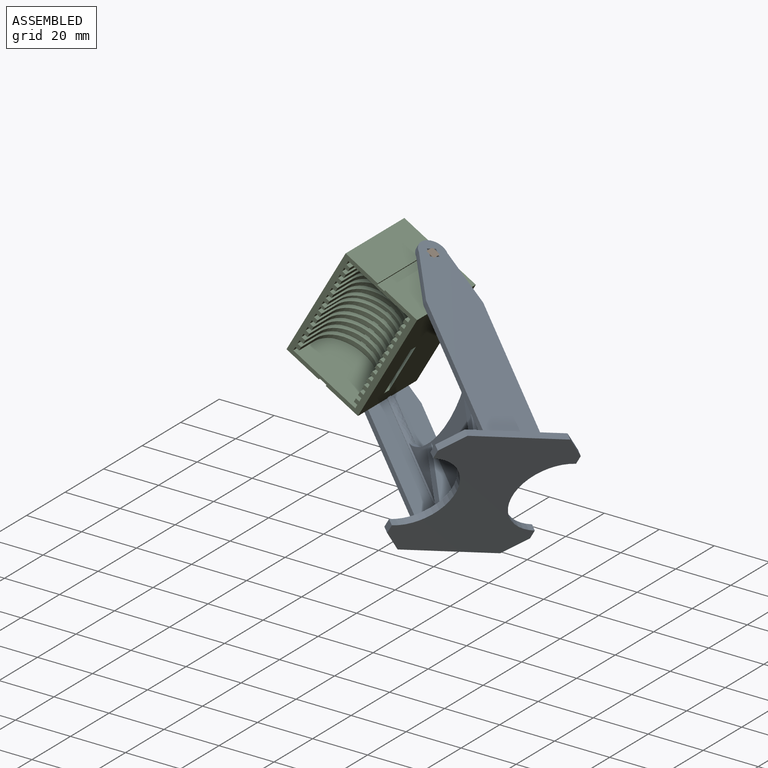
[diagram: assembled view]
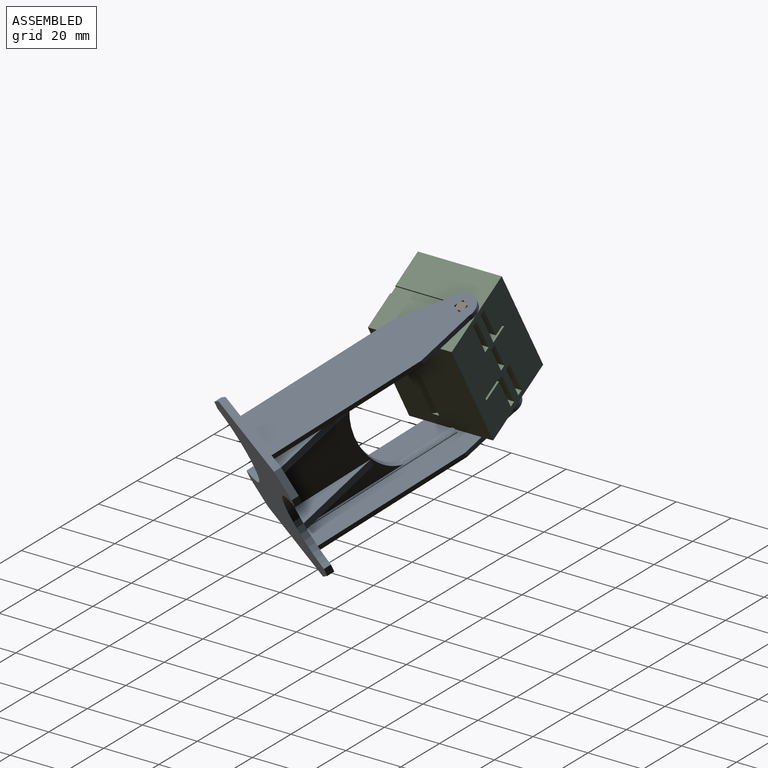
[diagram: assembled view, second angle]
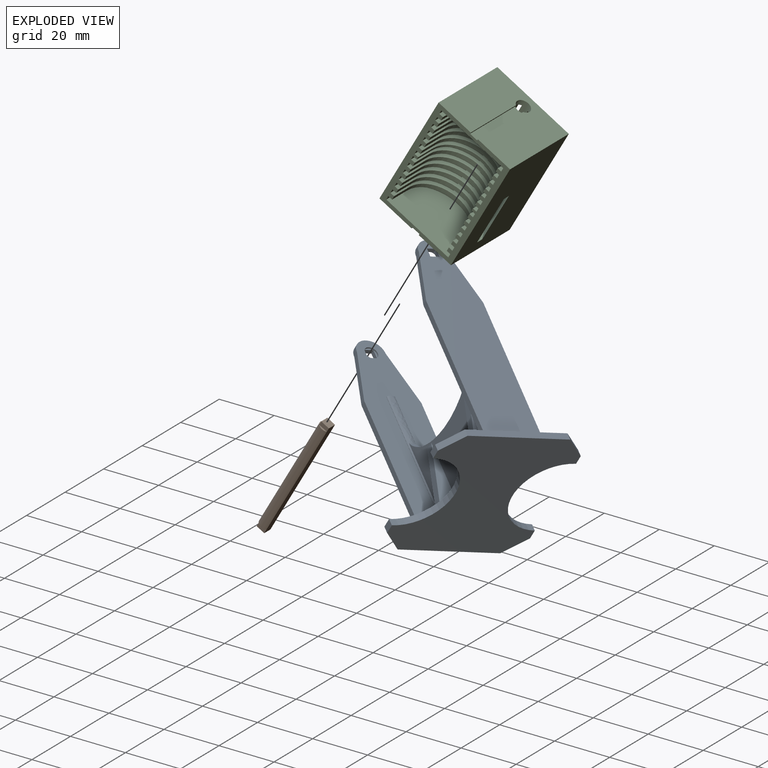
[diagram: exploded view]
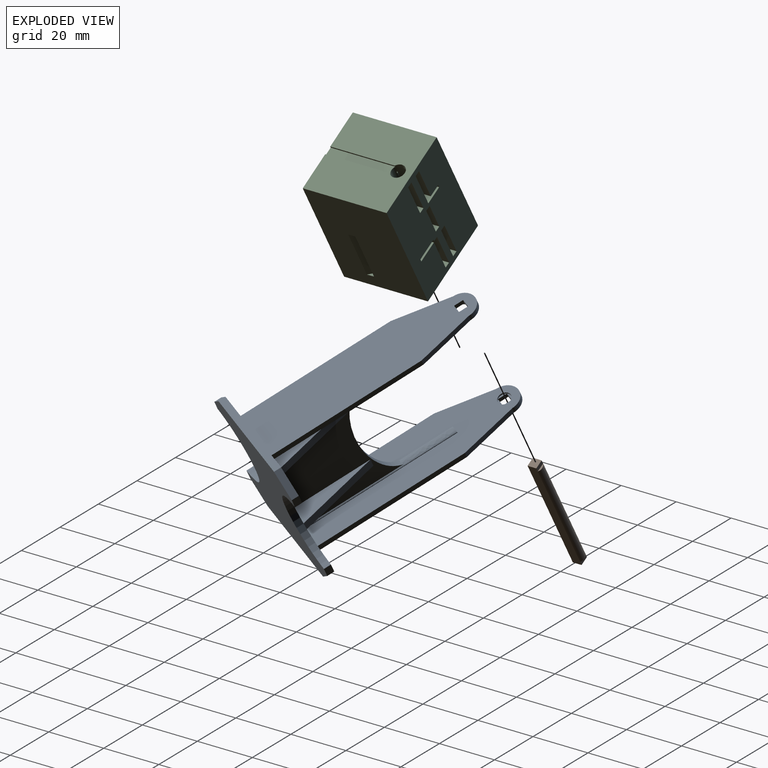
[diagram: exploded view, second angle]
ASSEMBLY  parts=3 mates=3
PART A: 65 faces, bbox 51x50x80.5 mm
  f0: plane 51x50mm, normal (0,0,1), area 1486.6mm2, adj f1,f2,f4,f5,f6,f7,f8,f9
  f1: plane 42.24x36.75mm, normal (0,1,0), area 1068.1mm2, adj f0,f3,f7,f8,f9,f10,f57,f58
  f2: plane 42.24x36.75mm, normal (0,-1,0), area 1068.1mm2, adj f0,f3,f6,f54,f55,f56,f59,f60
  f3: extruded ~42.24x9.89mm, area 97.4mm2, adj f1,f2,f62,f63
  f4: plane 78x20mm, normal (1,0,0), area 1219.4mm2, adj f0,f34,f35,f38,f40,f52,f53,f63
  f5: plane 78x20mm, normal (-1,0,0), area 1219.3mm2, adj f0,f36,f37,f39,f45,f50,f51,f61
  f6: plane 28.4x7.5mm, normal (-1,0,0), area 106.5mm2, adj f0,f2,f60
  f7: plane 28.4x7.5mm, normal (-1,0,0), area 106.5mm2, adj f0,f1,f58
  f8: plane 28.4x7.5mm, normal (1,0,0), area 106.5mm2, adj f0,f1,f58
  f9: plane 28.4x7.5mm, normal (1,0,0), area 106.5mm2, adj f0,f1,f57
  f10: plane 28.4x7.5mm, normal (-1,0,0), area 106.5mm2, adj f0,f1,f57
  f11: plane 78x20mm, normal (-1,0,0), area 1391.6mm2, adj f0,f17,f18,f19,f20,f34,f35,f38
  f12: plane 78x20mm, normal (1,0,0), area 1391.6mm2, adj f0,f13,f14,f15,f16,f36,f37,f39
  f13: plane 3.18x1.5mm, normal (0,0,1), area 4.8mm2, adj f12,f14,f16,f48
  f14: plane 3.18x1.5mm, normal (0,1,0), area 4.8mm2, adj f12,f13,f15,f46
  f15: plane 3.18x1.5mm, normal (0,0,-1), area 4.8mm2, adj f12,f14,f16,f47
  f16: plane 3.18x1.5mm, normal (0,-1,0), area 4.8mm2, adj f12,f13,f15,f49
  f17: plane 3.18x1.5mm, normal (0,-1,0), area 4.8mm2, adj f11,f18,f20,f43
  f18: plane 3.18x1.5mm, normal (0,0,-1), area 4.8mm2, adj f11,f17,f19,f41
  f19: plane 3.18x1.5mm, normal (0,1,0), area 4.8mm2, adj f11,f18,f20,f42
  f20: plane 3.18x1.5mm, normal (0,0,1), area 4.8mm2, adj f11,f17,f19,f44
  f21: plane 3.43x2.5mm, normal (0,1,0), area 8.6mm2, adj f0,f27,f28,f33
  f22: plane 3.43x2.5mm, normal (0,-1,0), area 8.6mm2, adj f0,f27,f31,f32
  f23: plane 3.43x2.5mm, normal (0,1,0), area 8.6mm2, adj f0,f27,f29,f33
  f24: plane 35.86x2.5mm, normal (-1,0,0), area 89.6mm2, adj f0,f27,f28,f31
  f25: plane 3.43x2.5mm, normal (0,-1,0), area 8.6mm2, adj f0,f27,f30,f32
  f26: plane 35.86x2.5mm, normal (1,0,0), area 89.6mm2, adj f0,f27,f29,f30
  f27: plane 51x50mm, normal (0,0,-1), area 1743.1mm2, adj f21,f22,f23,f24,f25,f26,f28,f29
  f28: plane 7.07x7.07mm, normal (-0.71,0.71,0), area 25mm2, adj f0,f21,f24,f27
  f29: plane 7.07x7.07mm, normal (0.71,0.71,0), area 25mm2, adj f0,f23,f26,f27
  f30: plane 7.07x7.07mm, normal (0.71,-0.71,0), area 25mm2, adj f0,f25,f26,f27
  f31: plane 7.07x7.07mm, normal (-0.71,-0.71,0), area 25mm2, adj f0,f22,f24,f27
  f32: cylinder r=15mm len=30mm, axis (0,0,1), area 117.8mm2, adj f0,f22,f25,f27
  f33: cylinder r=15mm len=30mm, axis (0,0,1), area 117.8mm2, adj f0,f21,f23,f27
  f34: plane 53.48x2mm, normal (0,1,0), area 107mm2, adj f0,f4,f11,f52
  f35: plane 53.48x2mm, normal (0,-1,0), area 107mm2, adj f0,f4,f11,f53
  f36: plane 53.48x2mm, normal (0,1,0), area 107mm2, adj f0,f5,f12,f50
  f37: plane 53.48x2mm, normal (0,-1,0), area 107mm2, adj f0,f5,f12,f51
  f38: cylinder r=5mm len=10mm, axis (-1,0,0), area 31.4mm2, adj f4,f11,f52,f53
  f39: cylinder r=5mm len=10mm, axis (1,0,0), area 31.4mm2, adj f5,f12,f50,f51
  f40: cylinder r=2.25mm len=4.5mm, axis (1,0,0), area 7.1mm2, adj f4,f41,f42,f43,f44
  f41: plane 3.18x0.66mm, normal (1,0,0), area 1.4mm2, adj f18,f40
  f42: plane 3.18x0.66mm, normal (1,0,0), area 1.4mm2, adj f19,f40
  f43: plane 3.18x0.66mm, normal (1,0,0), area 1.4mm2, adj f17,f40
  f44: plane 3.18x0.66mm, normal (1,0,0), area 1.4mm2, adj f20,f40
  f45: cylinder r=2.25mm len=4.5mm, axis (-1,0,0), area 7.1mm2, adj f5,f46,f47,f48,f49
  f46: plane 3.18x0.66mm, normal (-1,0,0), area 1.4mm2, adj f14,f45
  f47: plane 3.18x0.66mm, normal (-1,0,0), area 1.4mm2, adj f15,f45
  f48: plane 3.18x0.66mm, normal (-1,0,0), area 1.4mm2, adj f13,f45
  f49: plane 3.18x0.66mm, normal (-1,0,0), area 1.4mm2, adj f16,f45
  f50: plane 19.52x5mm, normal (0,0.97,0.25), area 40.3mm2, adj f5,f12,f36,f39
  f51: plane 19.52x5mm, normal (0,-0.97,0.25), area 40.3mm2, adj f5,f12,f37,f39
  f52: plane 19.52x5mm, normal (0,0.97,0.25), area 40.3mm2, adj f4,f11,f34,f38
  f53: plane 19.52x5mm, normal (0,-0.97,0.25), area 40.3mm2, adj f4,f11,f35,f38
  f54: plane 28.4x7.5mm, normal (1,0,0), area 106.5mm2, adj f0,f2,f60
  f55: plane 28.4x7.5mm, normal (1,0,0), area 106.5mm2, adj f0,f2,f59
  f56: plane 28.4x7.5mm, normal (-1,0,0), area 106.5mm2, adj f0,f2,f59
  f57: plane 28.4x7.5mm, normal (0,0.97,0.26), area 88.1mm2, adj f0,f1,f9,f10
  f58: plane 28.4x7.5mm, normal (0,0.97,0.26), area 88.1mm2, adj f0,f1,f7,f8
  f59: plane 28.4x7.5mm, normal (0,-0.97,0.26), area 88.1mm2, adj f0,f2,f55,f56
  f60: plane 28.4x7.5mm, normal (0,-0.97,0.26), area 88.1mm2, adj f0,f2,f6,f54
  f61: plane 3x0.5mm, normal (0,0,1), area 1.2mm2, adj f5,f62
  f62: extruded ~55.5x3mm, area 111.6mm2, adj f0,f1,f2,f3,f5,f61
  f63: extruded ~55.5x3mm, area 113.7mm2, adj f0,f1,f2,f3,f4,f64
  f64: plane 3x0.52mm, normal (0,0,1), area 1.2mm2, adj f4,f63
PART B: 16 faces, bbox 47x4.5x3.8 mm
  f0: cylinder r=2.25mm len=44mm, axis (1,0,0), area 466.5mm2, adj f1,f2,f3,f4,f5,f6,f9
  f1: plane 3.18x0.66mm, normal (-1,0,0), area 1.4mm2, adj f0,f12
  f2: plane 3.18x0.66mm, normal (-1,0,0), area 1.4mm2, adj f0,f13
  f3: plane 3.18x0.66mm, normal (-1,0,0), area 1.4mm2, adj f0,f14
  f4: plane 3.18x0.66mm, normal (1,0,0), area 1.4mm2, adj f0,f7
  f5: plane 3.18x0.66mm, normal (1,0,0), area 1.4mm2, adj f0,f10
  f6: plane 3.18x0.66mm, normal (1,0,0), area 1.4mm2, adj f0,f8
  f7: plane 3.18x1.5mm, normal (0,0,1), area 4.8mm2, adj f4,f8,f10,f11
  f8: plane 3.18x1.5mm, normal (0,-1,0), area 4.8mm2, adj f6,f7,f9,f11
  f9: plane 47x3.18mm, normal (0,0,-1), area 149.6mm2, adj f0,f8,f10,f11,f13,f14,f15
  f10: plane 3.18x1.5mm, normal (0,1,0), area 4.8mm2, adj f5,f7,f9,f11
  f11: plane 3.18x3.18mm, normal (1,0,0), area 10.1mm2, adj f7,f8,f9,f10
  f12: plane 3.18x1.5mm, normal (0,0,1), area 4.8mm2, adj f1,f13,f14,f15
  f13: plane 3.18x1.5mm, normal (0,-1,0), area 4.8mm2, adj f2,f9,f12,f15
  f14: plane 3.18x1.5mm, normal (0,1,0), area 4.8mm2, adj f3,f9,f12,f15
  f15: plane 3.18x3.18mm, normal (-1,0,0), area 10.1mm2, adj f9,f12,f13,f14
PART C: 205 faces, bbox 30x43x30.5 mm
  f0: plane 43x30mm, normal (0,0,-1), area 1156.2mm2, adj f3,f4,f7,f8,f9,f10,f11,f12
  f1: cylinder r=3.93mm len=9.25mm, axis (0,1,0), area 16.2mm2, adj f191,f193,f195,f203
  f2: cylinder r=3.25mm len=9.25mm, axis (0,-1,0), area 14.9mm2, adj f186,f188,f190,f200
  f3: plane 43x30.5mm, normal (1,0,0), area 1268.3mm2, adj f0,f4,f5,f110,f185,f188,f189,f190
  f4: plane 30.5x30mm, normal (0,1,0), area 825.9mm2, adj f0,f3,f5,f6,f111,f182,f184
  f5: plane 43x30mm, normal (0,0,1), area 304mm2, adj f3,f4,f15,f16,f17,f18,f19,f20
  f6: cylinder r=2.5mm len=43mm, axis (0,1,0), area 369mm2, adj f4,f7,f8,f9,f10,f11,f12,f13
  f7: plane 2.84x2mm, normal (0,1,0), area 5.2mm2, adj f0,f6,f9,f10
  f8: plane 2.84x2mm, normal (0,-1,0), area 5.2mm2, adj f0,f6,f9,f10
  f9: plane 10x2.62mm, normal (1,0,0), area 26.2mm2, adj f0,f6,f7,f8
  f10: plane 10x2.84mm, normal (-1,0,0), area 28.3mm2, adj f0,f6,f7,f8
  f11: plane 12.5x2.84mm, normal (1,0,0), area 35.3mm2, adj f0,f6,f112,f113,f197,f198
  f12: plane 12.5x2.84mm, normal (-1,0,0), area 35.4mm2, adj f0,f6,f114,f115
  f13: plane 12.5x2.84mm, normal (-1,0,0), area 35.4mm2, adj f0,f6,f116,f117
  f14: plane 12.5x2.84mm, normal (1,0,0), area 35.4mm2, adj f0,f6,f118,f119
  f15: plane 26x23.34mm, normal (0,1,0), area 85.9mm2, adj f5,f6,f43,f44,f75,f78,f80,f81
  f16: plane 26x23.34mm, normal (0,-1,0), area 85.9mm2, adj f5,f6,f43,f44,f79,f82,f83,f84
  f17: plane 26x21mm, normal (0,-1,0), area 473.5mm2, adj f5,f107,f108,f109
  f18: plane 26x21.5mm, normal (0,-1,0), area 84.6mm2, adj f5,f90,f91,f92,f93,f100,f101,f104
  f19: plane 26x21.5mm, normal (0,1,0), area 84.6mm2, adj f5,f90,f91,f92,f93,f107,f108,f109
  f20: plane 26x21.5mm, normal (0,-1,0), area 84.6mm2, adj f5,f90,f91,f92,f93,f95,f96,f99
  f21: plane 26x21.5mm, normal (0,1,0), area 84.6mm2, adj f5,f90,f91,f92,f93,f100,f101,f104
  f22: plane 26x21.5mm, normal (0,-1,0), area 84.6mm2, adj f5,f86,f87,f90,f91,f92,f93,f94
  f23: plane 26x21.5mm, normal (0,1,0), area 84.6mm2, adj f5,f90,f91,f92,f93,f95,f96,f99
  f24: plane 26x21.5mm, normal (0,-1,0), area 84.6mm2, adj f5,f85,f88,f89,f90,f91,f92,f93
  f25: plane 26x21.5mm, normal (0,1,0), area 84.6mm2, adj f5,f86,f87,f90,f91,f92,f93,f94
  f26: plane 26x21mm, normal (0,1,0), area 81.7mm2, adj f5,f85,f88,f89,f164,f165,f166
  f27: plane 26x21.5mm, normal (0,-1,0), area 82.8mm2, adj f5,f43,f44,f75,f78,f80,f81,f128
  f28: plane 26x21.5mm, normal (0,1,0), area 82.8mm2, adj f5,f42,f43,f44,f45,f46,f47,f128
  f29: plane 26x21mm, normal (0,-1,0), area 81.7mm2, adj f5,f74,f76,f77,f158,f159,f160
  f30: plane 26x21.5mm, normal (0,-1,0), area 84.6mm2, adj f5,f57,f58,f59,f60,f67,f68,f71
  f31: plane 26x21.5mm, normal (0,1,0), area 84.6mm2, adj f5,f57,f58,f59,f60,f74,f76,f77
  f32: plane 26x21.5mm, normal (0,-1,0), area 84.6mm2, adj f5,f57,f58,f59,f60,f62,f63,f66
  f33: plane 26x21.5mm, normal (0,1,0), area 84.6mm2, adj f5,f57,f58,f59,f60,f67,f68,f71
  f34: plane 26x21.5mm, normal (0,-1,0), area 84.6mm2, adj f5,f53,f54,f57,f58,f59,f60,f61
  f35: plane 26x21.5mm, normal (0,1,0), area 84.6mm2, adj f5,f57,f58,f59,f60,f62,f63,f66
  f36: plane 26x21.5mm, normal (0,-1,0), area 84.6mm2, adj f5,f52,f55,f56,f57,f58,f59,f60
  f37: plane 26x21.5mm, normal (0,1,0), area 84.6mm2, adj f5,f53,f54,f57,f58,f59,f60,f61
  f38: plane 26x21.5mm, normal (0,-1,0), area 82.8mm2, adj f5,f43,f44,f48,f49,f50,f51,f138
  f39: plane 26x21.5mm, normal (0,1,0), area 82.8mm2, adj f5,f43,f44,f79,f82,f83,f84,f138
  f40: plane 26x21.5mm, normal (0,-1,0), area 82.8mm2, adj f5,f42,f43,f44,f45,f46,f47,f139
  f41: plane 26x21.5mm, normal (0,1,0), area 82.8mm2, adj f5,f43,f44,f48,f49,f50,f51,f139
  f42: cylinder r=13mm len=12.98mm, axis (0,-1,0), area 29.5mm2, adj f28,f40,f43,f46
  f43: plane 10x2.14mm, normal (1,0,0), area 19.3mm2, adj f6,f15,f16,f27,f28,f38,f39,f40
  f44: plane 10x2.4mm, normal (-1,0,0), area 21.7mm2, adj f6,f15,f16,f27,f28,f38,f39,f40
  f45: cylinder r=13mm len=12.94mm, axis (0,-1,0), area 28.8mm2, adj f28,f40,f44,f47
  f46: plane 8x1.5mm, normal (1,0,0), area 12mm2, adj f5,f28,f40,f42
  f47: plane 8x1.5mm, normal (-1,0,0), area 12mm2, adj f5,f28,f40,f45
  f48: cylinder r=13mm len=12.98mm, axis (0,-1,0), area 29.5mm2, adj f38,f41,f43,f50
  f49: cylinder r=13mm len=12.94mm, axis (0,-1,0), area 28.8mm2, adj f38,f41,f44,f51
  f50: plane 8x1.5mm, normal (1,0,0), area 12mm2, adj f5,f38,f41,f48
  f51: plane 8x1.5mm, normal (-1,0,0), area 12mm2, adj f5,f38,f41,f49
  f52: cylinder r=13mm len=26mm, axis (0,-1,0), area 57.2mm2, adj f36,f55,f56,f57,f58,f59,f60,f112
  f53: cylinder r=13mm len=12.59mm, axis (0,-1,0), area 25.7mm2, adj f34,f37,f59,f64
  f54: cylinder r=13mm len=2.5mm, axis (0,-1,0), area 3.8mm2, adj f34,f37,f57,f60
  f55: plane 8x1.5mm, normal (1,0,0), area 12mm2, adj f5,f36,f52,f137
  f56: plane 8x1.5mm, normal (-1,0,0), area 12mm2, adj f5,f36,f52,f137
  f57: plane 12.5x2.4mm, normal (1,0,0), area 26.6mm2, adj f6,f30,f31,f32,f33,f34,f35,f36
  f58: plane 12.5x9.91mm, normal (-1,0,0), area 117.7mm2, adj f0,f30,f31,f32,f33,f34,f35,f36
  f59: plane 12.5x9.91mm, normal (1,0,0), area 118.4mm2, adj f0,f30,f31,f32,f33,f34,f35,f36
  f60: plane 12.5x2.4mm, normal (-1,0,0), area 26.6mm2, adj f6,f30,f31,f32,f33,f34,f35,f36
  f61: cylinder r=13mm len=12.59mm, axis (0,-1,0), area 25.7mm2, adj f34,f37,f58,f65
  f62: cylinder r=13mm len=12.59mm, axis (0,-1,0), area 25.7mm2, adj f32,f35,f59,f69
  f63: cylinder r=13mm len=2.5mm, axis (0,-1,0), area 3.8mm2, adj f32,f35,f57,f60
  f64: plane 8x1.5mm, normal (1,0,0), area 12mm2, adj f5,f34,f37,f53
  f65: plane 8x1.5mm, normal (-1,0,0), area 12mm2, adj f5,f34,f37,f61
  f66: cylinder r=13mm len=12.59mm, axis (0,-1,0), area 25.7mm2, adj f32,f35,f58,f70
  f67: cylinder r=13mm len=12.59mm, axis (0,-1,0), area 25.7mm2, adj f30,f33,f59,f72
  f68: cylinder r=13mm len=2.5mm, axis (0,-1,0), area 3.8mm2, adj f30,f33,f57,f60
  f69: plane 8x1.5mm, normal (1,0,0), area 12mm2, adj f5,f32,f35,f62
  f70: plane 8x1.5mm, normal (-1,0,0), area 12mm2, adj f5,f32,f35,f66
  f71: cylinder r=13mm len=12.59mm, axis (0,-1,0), area 25.7mm2, adj f30,f33,f58,f73
  f72: plane 8x1.5mm, normal (1,0,0), area 12mm2, adj f5,f30,f33,f67
  f73: plane 8x1.5mm, normal (-1,0,0), area 12mm2, adj f5,f30,f33,f71
  f74: cylinder r=13mm len=26mm, axis (0,-1,0), area 57.2mm2, adj f29,f31,f57,f58,f59,f60,f76,f77
  f75: cylinder r=13mm len=12.98mm, axis (0,-1,0), area 29.5mm2, adj f15,f27,f43,f80
  f76: plane 8x1.5mm, normal (1,0,0), area 12mm2, adj f5,f29,f31,f74
  f77: plane 8x1.5mm, normal (-1,0,0), area 12mm2, adj f5,f29,f31,f74
  f78: cylinder r=13mm len=12.94mm, axis (0,-1,0), area 28.8mm2, adj f15,f27,f44,f81
  f79: cylinder r=13mm len=12.98mm, axis (0,-1,0), area 29.5mm2, adj f16,f39,f43,f83
  f80: plane 8x1.5mm, normal (1,0,0), area 12mm2, adj f5,f15,f27,f75
  f81: plane 8x1.5mm, normal (-1,0,0), area 12mm2, adj f5,f15,f27,f78
  f82: cylinder r=13mm len=12.94mm, axis (0,-1,0), area 28.8mm2, adj f16,f39,f44,f84
  f83: plane 8x1.5mm, normal (1,0,0), area 12mm2, adj f5,f16,f39,f79
  f84: plane 8x1.5mm, normal (-1,0,0), area 12mm2, adj f5,f16,f39,f82
  f85: cylinder r=13mm len=26mm, axis (0,-1,0), area 57.2mm2, adj f24,f26,f88,f89,f90,f91,f92,f93
  f86: cylinder r=13mm len=12.59mm, axis (0,-1,0), area 25.7mm2, adj f22,f25,f90,f97
  f87: cylinder r=13mm len=2.5mm, axis (0,-1,0), area 3.8mm2, adj f22,f25,f91,f92
  f88: plane 8x1.5mm, normal (1,0,0), area 12mm2, adj f5,f24,f26,f85
  f89: plane 8x1.5mm, normal (-1,0,0), area 12mm2, adj f5,f24,f26,f85
  f90: plane 12.5x9.91mm, normal (1,0,0), area 118mm2, adj f0,f18,f19,f20,f21,f22,f23,f24
  f91: plane 12.5x2.4mm, normal (-1,0,0), area 26.6mm2, adj f6,f18,f19,f20,f21,f22,f23,f24
  f92: plane 12.5x2.4mm, normal (1,0,0), area 26.6mm2, adj f6,f18,f19,f20,f21,f22,f23,f24
  f93: plane 12.5x9.91mm, normal (-1,0,0), area 118.4mm2, adj f0,f18,f19,f20,f21,f22,f23,f24
  f94: cylinder r=13mm len=12.59mm, axis (0,-1,0), area 25.7mm2, adj f22,f25,f93,f98
  f95: cylinder r=13mm len=12.59mm, axis (0,-1,0), area 25.7mm2, adj f20,f23,f90,f102
  f96: cylinder r=13mm len=2.5mm, axis (0,-1,0), area 3.8mm2, adj f20,f23,f91,f92
  f97: plane 8x1.5mm, normal (1,0,0), area 12mm2, adj f5,f22,f25,f86
  f98: plane 8x1.5mm, normal (-1,0,0), area 12mm2, adj f5,f22,f25,f94
  f99: cylinder r=13mm len=12.59mm, axis (0,-1,0), area 25.7mm2, adj f20,f23,f93,f103
  f100: cylinder r=13mm len=12.59mm, axis (0,-1,0), area 25.7mm2, adj f18,f21,f90,f105
  f101: cylinder r=13mm len=2.5mm, axis (0,-1,0), area 3.8mm2, adj f18,f21,f91,f92
  f102: plane 8x1.5mm, normal (1,0,0), area 12mm2, adj f5,f20,f23,f95
  f103: plane 8x1.5mm, normal (-1,0,0), area 12mm2, adj f5,f20,f23,f99
  f104: cylinder r=13mm len=12.59mm, axis (0,-1,0), area 25.7mm2, adj f18,f21,f93,f106
  f105: plane 8x1.5mm, normal (1,0,0), area 12mm2, adj f5,f18,f21,f100
  f106: plane 8x1.5mm, normal (-1,0,0), area 12mm2, adj f5,f18,f21,f104
  f107: cylinder r=13mm len=26mm, axis (0,-1,0), area 57.2mm2, adj f17,f19,f90,f91,f92,f93,f108,f109
  f108: plane 8x1.5mm, normal (1,0,0), area 12mm2, adj f5,f17,f19,f107
  f109: plane 8x1.5mm, normal (-1,0,0), area 12mm2, adj f5,f17,f19,f107
  f110: plane 30.5x30mm, normal (0,-1,0), area 825.9mm2, adj f0,f3,f5,f6,f111,f179,f180
  f111: plane 43x30.5mm, normal (-1,0,0), area 1260.8mm2, adj f0,f4,f5,f110,f191,f193,f194,f195
  f112: plane 9.91x2mm, normal (0,1,0), area 15.6mm2, adj f0,f6,f11,f52,f57,f58
  f113: plane 9.31x2mm, normal (0,-1,0), area 11.1mm2, adj f6,f11,f57,f58,f74,f197
  f114: plane 9.91x2mm, normal (0,1,0), area 15.6mm2, adj f0,f6,f12,f52,f59,f60
  f115: plane 9.91x2mm, normal (0,-1,0), area 15.6mm2, adj f0,f6,f12,f59,f60,f74
  f116: plane 9.91x2mm, normal (0,1,0), area 15.2mm2, adj f0,f6,f13,f85,f90,f91,f202
  f117: plane 9.91x2mm, normal (0,-1,0), area 15.6mm2, adj f0,f6,f13,f90,f91,f107
  f118: plane 9.91x2mm, normal (0,1,0), area 15.6mm2, adj f0,f6,f14,f85,f92,f93
  f119: plane 9.91x2mm, normal (0,-1,0), area 15.6mm2, adj f0,f6,f14,f92,f93,f107
  f120: plane 2x1.5mm, normal (0,0,-1), area 3mm2, adj f18,f19,f90,f91
  f121: plane 2x1.5mm, normal (0,0,-1), area 3mm2, adj f18,f19,f92,f93
  f122: plane 2x1.5mm, normal (0,0,-1), area 3mm2, adj f20,f21,f90,f91
  f123: plane 2x1.5mm, normal (0,0,-1), area 3mm2, adj f20,f21,f92,f93
  f124: plane 2x1.5mm, normal (0,0,-1), area 3mm2, adj f22,f23,f90,f91
  f125: plane 2x1.5mm, normal (0,0,-1), area 3mm2, adj f22,f23,f92,f93
  f126: plane 2x1.5mm, normal (0,0,-1), area 3mm2, adj f24,f25,f90,f91
  f127: plane 2x1.5mm, normal (0,0,-1), area 3mm2, adj f24,f25,f92,f93
  f128: plane 2x1.5mm, normal (0,0,-1), area 3mm2, adj f27,f28,f43,f44
  f129: plane 2x1.5mm, normal (0,0,-1), area 3mm2, adj f30,f31,f57,f58
  f130: plane 2x1.5mm, normal (0,0,-1), area 3mm2, adj f30,f31,f59,f60
  f131: plane 2x1.5mm, normal (0,0,-1), area 3mm2, adj f32,f33,f57,f58
  f132: plane 2x1.5mm, normal (0,0,-1), area 3mm2, adj f32,f33,f59,f60
  f133: plane 2x1.5mm, normal (0,0,-1), area 3mm2, adj f34,f35,f57,f58
  f134: plane 2x1.5mm, normal (0,0,-1), area 3mm2, adj f34,f35,f59,f60
  f135: plane 2x1.5mm, normal (0,0,-1), area 3mm2, adj f36,f37,f57,f58
  f136: plane 2x1.5mm, normal (0,0,-1), area 3mm2, adj f36,f37,f59,f60
  f137: plane 26x21mm, normal (0,1,0), area 473.5mm2, adj f5,f52,f55,f56
  f138: plane 2x1.5mm, normal (0,0,-1), area 3mm2, adj f38,f39,f43,f44
  f139: plane 2x1mm, normal (0,0,-1), area 2mm2, adj f40,f41,f43,f44
  f140: plane 8x1mm, normal (1,0,0), area 8mm2, adj f5,f40,f41,f141
  f141: cylinder r=11.5mm len=23mm, axis (0,1,0), area 36.1mm2, adj f40,f41,f140,f142
  f142: plane 8x1mm, normal (-1,0,0), area 8mm2, adj f5,f40,f41,f141
  f143: plane 8x1.5mm, normal (1,0,0), area 12mm2, adj f5,f38,f39,f144
  f144: cylinder r=11.5mm len=23mm, axis (0,1,0), area 54.2mm2, adj f38,f39,f143,f145
  f145: plane 8x1.5mm, normal (-1,0,0), area 12mm2, adj f5,f38,f39,f144
  f146: plane 8x1.5mm, normal (1,0,0), area 12mm2, adj f5,f36,f37,f147
  f147: cylinder r=11.5mm len=23mm, axis (0,1,0), area 54.2mm2, adj f36,f37,f146,f148
  f148: plane 8x1.5mm, normal (-1,0,0), area 12mm2, adj f5,f36,f37,f147
  f149: plane 8x1.5mm, normal (1,0,0), area 12mm2, adj f5,f34,f35,f150
  f150: cylinder r=11.5mm len=23mm, axis (0,1,0), area 54.2mm2, adj f34,f35,f149,f151
  f151: plane 8x1.5mm, normal (-1,0,0), area 12mm2, adj f5,f34,f35,f150
  f152: plane 8x1.5mm, normal (1,0,0), area 12mm2, adj f5,f32,f33,f153
  f153: cylinder r=11.5mm len=23mm, axis (0,1,0), area 54.2mm2, adj f32,f33,f152,f154
  f154: plane 8x1.5mm, normal (-1,0,0), area 12mm2, adj f5,f32,f33,f153
  f155: plane 8x1.5mm, normal (1,0,0), area 12mm2, adj f5,f30,f31,f156
  f156: cylinder r=11.5mm len=23mm, axis (0,1,0), area 54.2mm2, adj f30,f31,f155,f157
  f157: plane 8x1.5mm, normal (-1,0,0), area 12mm2, adj f5,f30,f31,f156
  f158: plane 8x1.5mm, normal (1,0,0), area 12mm2, adj f5,f15,f29,f159
  f159: cylinder r=11.5mm len=23mm, axis (0,1,0), area 54.2mm2, adj f15,f29,f158,f160
  f160: plane 8x1.5mm, normal (-1,0,0), area 12mm2, adj f5,f15,f29,f159
  f161: plane 8x1.5mm, normal (1,0,0), area 12mm2, adj f5,f27,f28,f162
  f162: cylinder r=11.5mm len=23mm, axis (0,1,0), area 54.2mm2, adj f27,f28,f161,f163
  f163: plane 8x1.5mm, normal (-1,0,0), area 12mm2, adj f5,f27,f28,f162
  f164: plane 8x1.5mm, normal (1,0,0), area 12mm2, adj f5,f16,f26,f165
  f165: cylinder r=11.5mm len=23mm, axis (0,1,0), area 54.2mm2, adj f16,f26,f164,f166
  f166: plane 8x1.5mm, normal (-1,0,0), area 12mm2, adj f5,f16,f26,f165
  f167: plane 8x1.5mm, normal (1,0,0), area 12mm2, adj f5,f24,f25,f168
  f168: cylinder r=11.5mm len=23mm, axis (0,1,0), area 54.2mm2, adj f24,f25,f167,f169
  f169: plane 8x1.5mm, normal (-1,0,0), area 12mm2, adj f5,f24,f25,f168
  f170: plane 8x1.5mm, normal (1,0,0), area 12mm2, adj f5,f22,f23,f171
  f171: cylinder r=11.5mm len=23mm, axis (0,1,0), area 54.2mm2, adj f22,f23,f170,f172
  f172: plane 8x1.5mm, normal (-1,0,0), area 12mm2, adj f5,f22,f23,f171
  f173: plane 8x1.5mm, normal (1,0,0), area 12mm2, adj f5,f20,f21,f174
  f174: cylinder r=11.5mm len=23mm, axis (0,1,0), area 54.2mm2, adj f20,f21,f173,f175
  f175: plane 8x1.5mm, normal (-1,0,0), area 12mm2, adj f5,f20,f21,f174
  f176: plane 8x1.5mm, normal (1,0,0), area 12mm2, adj f5,f18,f19,f177
  f177: cylinder r=11.5mm len=23mm, axis (0,1,0), area 54.2mm2, adj f18,f19,f176,f178
  f178: plane 8x1.5mm, normal (-1,0,0), area 12mm2, adj f5,f18,f19,f177
  f179: plane 23.5x0.5mm, normal (1,0,0), area 11.7mm2, adj f5,f6,f110,f181
  f180: plane 23.5x0.5mm, normal (-1,0,0), area 11.7mm2, adj f5,f6,f110,f181
  f181: plane 23.5x3mm, normal (0,-1,0), area 69.5mm2, adj f5,f6,f179,f180
  f182: plane 23.5x0.5mm, normal (1,0,0), area 11.7mm2, adj f4,f5,f6,f183
  f183: plane 23.5x3mm, normal (0,1,0), area 69.5mm2, adj f5,f6,f182,f184
  f184: plane 23.5x0.5mm, normal (-1,0,0), area 11.7mm2, adj f4,f5,f6,f183
  f185: plane 19.5x15.79mm, normal (0.81,0,-0.59), area 380.2mm2, adj f3,f186,f189,f190
  f186: plane 19.5x0.03mm, normal (0.59,0,0.81), area 0.6mm2, adj f2,f185,f187,f189,f190,f197
  f187: cylinder r=3.25mm len=9.25mm, axis (0,-1,0), area 14.9mm2, adj f186,f188,f189,f199
  f188: plane 19.5x13.56mm, normal (-0.81,0,0.59), area 326.5mm2, adj f2,f3,f187,f189,f190,f196
  f189: plane 15.81x11.45mm, normal (0,-1,0), area 23.5mm2, adj f3,f185,f186,f187,f188
  f190: plane 15.81x11.45mm, normal (0,1,0), area 23.5mm2, adj f2,f3,f185,f186,f188
  f191: plane 19.5x16.89mm, normal (-0.87,0,-0.5), area 380.2mm2, adj f1,f111,f192,f194,f195,f202
  f192: cylinder r=3.93mm len=9.25mm, axis (0,1,0), area 16.2mm2, adj f191,f193,f194,f204
  f193: plane 19.5x13.94mm, normal (0.87,0,0.5), area 314mm2, adj f1,f111,f192,f194,f195,f201
  f194: plane 16.89x9.75mm, normal (0,1,0), area 23mm2, adj f111,f191,f192,f193
  f195: plane 16.89x9.75mm, normal (0,-1,0), area 23mm2, adj f1,f111,f191,f193
  f196: cylinder r=3.25mm len=3.17mm, axis (0,-1,0), area 4.4mm2, adj f0,f188,f199,f200
  f197: cylinder r=3.25mm len=3.13mm, axis (0,-1,0), area 3.4mm2, adj f0,f11,f58,f113,f186,f198,f199,f200
  f198: plane 0.6x0.06mm, normal (0,1,0), area 0mm2, adj f0,f11,f197
  f199: plane 6.5x3.25mm, normal (0,-1,0), area 16.6mm2, adj f0,f187,f196,f197
  f200: plane 4.45x3.25mm, normal (0,1,0), area 12.1mm2, adj f0,f2,f58,f196,f197
  f201: cylinder r=3.93mm len=3.93mm, axis (0,1,0), area 6.1mm2, adj f0,f193,f203,f204
  f202: cylinder r=3.93mm len=3.59mm, axis (0,1,0), area 4.1mm2, adj f0,f90,f116,f191,f203,f204
  f203: plane 7.54x3.93mm, normal (0,-1,0), area 24mm2, adj f0,f1,f90,f201,f202
  f204: plane 7.87x3.93mm, normal (0,1,0), area 24.3mm2, adj f0,f192,f201,f202
PLACE A rot(axis=(-0.41,-0.88,-0.24),66.5deg) t=(-142.32,174.08,-79.16)mm
PLACE B rot(axis=(0,-1,0),60deg) t=(-184.64,188.59,0.13)mm
PLACE C rot(axis=(0.19,-0.69,0.69),158.9deg) t=(-194.78,195.18,-44.25)mm
MATE revolute B.f0 <-> A.f39  axis (-0.5,0,-0.87) through (-208.77,190.18,-38.48)mm
MATE revolute C.f6 <-> B.f0  axis (0.5,0,0.87) through (-186.27,190.18,0.49)mm
MATE pin_slot A.f39 <-> B.f0  axis (-0.5,0,-0.87) through (-208.77,190.18,-38.48)mm
